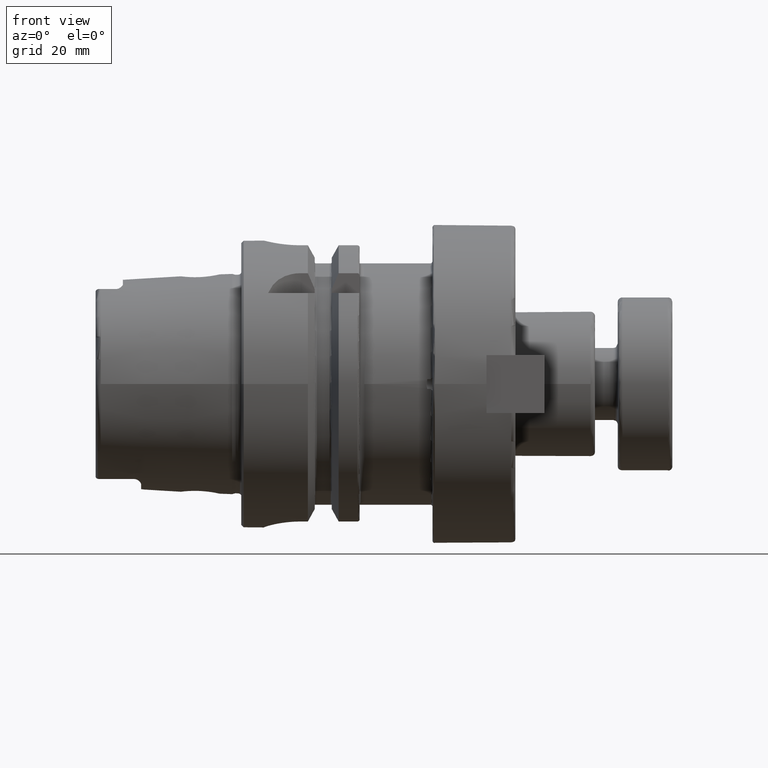
[diagram: clean part render]
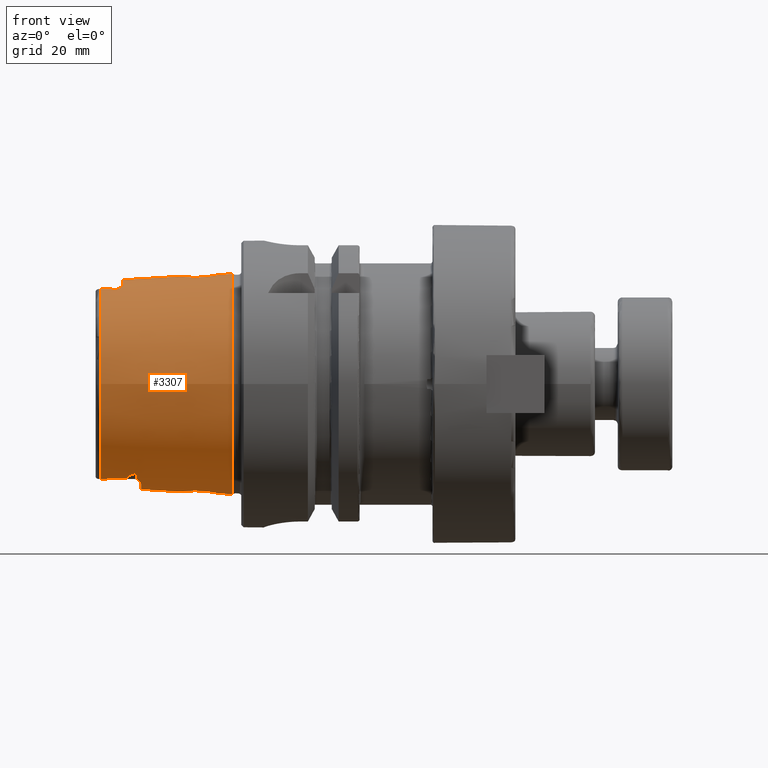
[diagram: same view with one face highlighted and labeled with its STEP entity id]
A machine part, front view. The second image highlights one B-rep face of the part: STEP entity #3307.
In plain terms, the highlighted conical surface has half-angle 2.868 deg.
Its self-contained STEP definition (entity closure, byte-faithful):
#53=(
BOUNDED_CURVE()
B_SPLINE_CURVE(2,(#5872,#5873,#5874),.UNSPECIFIED.,.F.,.F.)
B_SPLINE_CURVE_WITH_KNOTS((3,3),(0.409626932432081,0.704053423593105),
 .UNSPECIFIED.)
CURVE()
GEOMETRIC_REPRESENTATION_ITEM()
RATIONAL_B_SPLINE_CURVE((1.00336468859939,1.00336468859939,1.00162640098087))
REPRESENTATION_ITEM('')
);
#54=(
BOUNDED_CURVE()
B_SPLINE_CURVE(2,(#5939,#5940,#5941),.UNSPECIFIED.,.F.,.F.)
B_SPLINE_CURVE_WITH_KNOTS((3,3),(0.115200441271059,0.409626932432082),
 .UNSPECIFIED.)
CURVE()
GEOMETRIC_REPRESENTATION_ITEM()
RATIONAL_B_SPLINE_CURVE((1.00162640098087,1.00336468859939,1.00336468859939))
REPRESENTATION_ITEM('')
);
#132=FACE_BOUND('',#943,.T.);
#133=FACE_BOUND('',#944,.T.);
#272=LINE('',#5869,#472);
#472=VECTOR('',#4317,23.4974838444284);
#736=FACE_OUTER_BOUND('',#942,.T.);
#942=EDGE_LOOP('',(#2512,#2513,#2514,#2515,#2516,#2517,#2518,#2519,#2520,
#2521,#2522,#2523,#2524,#2525,#2526,#2527,#2528,#2529,#2530,#2531));
#943=EDGE_LOOP('',(#2532));
#944=EDGE_LOOP('',(#2533));
#1164=CIRCLE('',#3690,24.2204308617234);
#1165=CIRCLE('',#3691,22.7745368271334);
#1166=CIRCLE('',#3692,23.2184268537074);
#1167=CIRCLE('',#3693,22.7745368271334);
#1168=CIRCLE('',#3694,23.0180260521042);
#1169=CIRCLE('',#3695,22.7745368271334);
#1313=B_SPLINE_CURVE_WITH_KNOTS('',3,(#5558,#5559,#5560,#5561,#5562,#5563,
#5564,#5565,#5566,#5567,#5568,#5569,#5570,#5571,#5572,#5573,#5574,#5575),
 .UNSPECIFIED.,.F.,.F.,(4,2,2,2,2,2,2,2,4),(0.937345209538582,1.02529838322405,
1.19618144709472,1.36706451096539,1.42680307053412,1.48654163010284,1.50096970945234,
1.50818374912708,1.51539778880183),.UNSPECIFIED.);
#1316=B_SPLINE_CURVE_WITH_KNOTS('',3,(#5626,#5627,#5628,#5629,#5630,#5631,
#5632,#5633,#5634,#5635,#5636,#5637,#5638,#5639,#5640,#5641,#5642,#5643),
 .UNSPECIFIED.,.F.,.F.,(4,2,2,2,2,2,2,2,4),(1.51539778880184,1.52261182847659,
1.52982586815134,1.54425394750083,1.60399250706955,1.66373106663827,1.83461413050895,
2.00549719437962,2.0934503680651),.UNSPECIFIED.);
#1318=B_SPLINE_CURVE_WITH_KNOTS('',3,(#5681,#5682,#5683,#5684,#5685,#5686,
#5687,#5688),.UNSPECIFIED.,.F.,.F.,(4,2,2,4),(1.77153596711132,1.83492838643131,
2.00584149209106,2.09371558288111),.UNSPECIFIED.);
#1319=B_SPLINE_CURVE_WITH_KNOTS('',3,(#5705,#5706,#5707,#5708,#5709,#5710,
#5711,#5712),.UNSPECIFIED.,.F.,.F.,(4,2,2,4),(0.937604543168422,1.02547863395848,
1.19639173961822,1.25978415893822),.UNSPECIFIED.);
#1323=B_SPLINE_CURVE_WITH_KNOTS('',3,(#5844,#5845,#5846,#5847,#5848,#5849,
#5850,#5851,#5852,#5853,#5854,#5855,#5856,#5857,#5858,#5859,#5860,#5861,
#5862,#5863,#5864),.UNSPECIFIED.,.T.,.F.,(4,1,1,1,1,1,1,1,1,1,1,1,1,1,1,
1,1,1,4),(-2.26557970640445,-2.10375258451842,-1.94192546263239,-1.86101190168937,
-1.78009834074636,-1.61827121886032,-1.45644409697429,-1.37553053603127,
-1.29461697508826,-1.18673222716424,-1.07884747924022,-0.970962731316194,
-0.863077983392173,-0.755193235468151,-0.647308487544129,-0.485481365658097,
-0.323654243772065,-0.161827121886032,0.),.UNSPECIFIED.);
#1324=B_SPLINE_CURVE_WITH_KNOTS('',3,(#5876,#5877,#5878,#5879,#5880,#5881,
#5882,#5883,#5884,#5885,#5886,#5887,#5888,#5889,#5890,#5891,#5892,#5893),
 .UNSPECIFIED.,.F.,.F.,(4,2,2,2,2,2,2,2,4),(0.,0.0903555875079969,0.135533381261995,
0.180711175015994,0.191679253692351,0.19716329303053,0.202647332368709,
0.208141673454593,0.210684760739668),.UNSPECIFIED.);
#1325=B_SPLINE_CURVE_WITH_KNOTS('',3,(#5895,#5896,#5897,#5898,#5899,#5900,
#5901,#5902,#5903,#5904),.UNSPECIFIED.,.F.,.F.,(4,2,2,2,4),(0.278659319230627,
0.333918541832895,0.442805459609021,0.482035165304681,0.500954004489134),
 .UNSPECIFIED.);
#1326=B_SPLINE_CURVE_WITH_KNOTS('',3,(#5908,#5909,#5910,#5911,#5912,#5913,
#5914,#5915,#5916,#5917,#5918,#5919),.UNSPECIFIED.,.F.,.F.,(4,2,2,2,2,4),
(0.500954004487512,0.503863987446674,0.528331134036938,0.580812359186298,
0.712749669755574,0.726249722962121),.UNSPECIFIED.);
#1327=B_SPLINE_CURVE_WITH_KNOTS('',3,(#5921,#5922,#5923,#5924,#5925,#5926,
#5927,#5928,#5929,#5930,#5931,#5932,#5933,#5934,#5935,#5936,#5937,#5938),
 .UNSPECIFIED.,.F.,.F.,(4,2,2,2,2,2,2,2,4),(0.599581967500703,0.602125054785784,
0.607619395871668,0.613103435209847,0.618587474548027,0.629555553224386,
0.674733346978385,0.719911140732385,0.810266728240384),.UNSPECIFIED.);
#1328=B_SPLINE_CURVE_WITH_KNOTS('',3,(#5944,#5945,#5946,#5947,#5948,#5949,
#5950,#5951,#5952,#5953,#5954,#5955,#5956,#5957),.UNSPECIFIED.,.F.,.F.,
(4,2,2,2,2,2,4),(0.612787130113112,0.692070205831572,0.846913877833334,
0.923866042648552,0.979732337200682,1.02631946127753,1.05465853457542),
 .UNSPECIFIED.);
#1329=B_SPLINE_CURVE_WITH_KNOTS('',3,(#5960,#5961,#5962,#5963,#5964,#5965,
#5966,#5967,#5968,#5969,#5970,#5971,#5972,#5973),.UNSPECIFIED.,.F.,.F.,
(4,2,2,2,2,2,4),(0.413162960284885,0.443293122422243,0.485069563612126,
0.532728756474865,0.604908335246701,0.737193690325506,0.813919818316776),
 .UNSPECIFIED.);
#1330=B_SPLINE_CURVE_WITH_KNOTS('',3,(#5976,#5977,#5978,#5979,#5980,#5981,
#5982,#5983,#5984,#5985,#5986,#5987,#5988,#5989,#5990,#5991,#5992,#5993,
#5994,#5995,#5996),.UNSPECIFIED.,.T.,.F.,(4,1,1,1,1,1,1,1,1,1,1,1,1,1,1,
1,1,1,4),(-2.26557970640445,-2.10375258451842,-1.94192546263239,-1.78009834074636,
-1.61827121886032,-1.45644409697429,-1.37553053603127,-1.29461697508826,
-1.18673222716424,-1.07884747924022,-1.0249051052782,-0.970962731316194,
-0.755193235468151,-0.647308487544129,-0.485481365658097,-0.404567804715081,
-0.323654243772065,-0.161827121886032,0.),.UNSPECIFIED.);
#1466=VERTEX_POINT('',#5555);
#1467=VERTEX_POINT('',#5557);
#1477=VERTEX_POINT('',#5612);
#1478=VERTEX_POINT('',#5625);
#1488=VERTEX_POINT('',#5667);
#1489=VERTEX_POINT('',#5680);
#1495=VERTEX_POINT('',#5702);
#1496=VERTEX_POINT('',#5704);
#1499=VERTEX_POINT('',#5815);
#1502=VERTEX_POINT('',#5866);
#1503=VERTEX_POINT('',#5868);
#1504=VERTEX_POINT('',#5871);
#1505=VERTEX_POINT('',#5875);
#1506=VERTEX_POINT('',#5894);
#1507=VERTEX_POINT('',#5905);
#1508=VERTEX_POINT('',#5907);
#1509=VERTEX_POINT('',#5920);
#1510=VERTEX_POINT('',#5943);
#1511=VERTEX_POINT('',#5958);
#1512=VERTEX_POINT('',#5975);
#1838=EDGE_CURVE('',#1467,#1466,#1313,.T.);
#1852=EDGE_CURVE('',#1478,#1477,#1316,.T.);
#1865=EDGE_CURVE('',#1489,#1488,#1318,.T.);
#1873=EDGE_CURVE('',#1496,#1495,#1319,.T.);
#1881=EDGE_CURVE('',#1499,#1499,#1323,.T.);
#1882=EDGE_CURVE('',#1502,#1502,#1164,.T.);
#1883=EDGE_CURVE('',#1502,#1503,#272,.T.);
#1884=EDGE_CURVE('',#1503,#1467,#1165,.T.);
#1885=EDGE_CURVE('',#1466,#1504,#53,.T.);
#1886=EDGE_CURVE('',#1505,#1504,#1324,.T.);
#1887=EDGE_CURVE('',#1506,#1505,#1325,.T.);
#1888=EDGE_CURVE('',#1506,#1507,#1166,.T.);
#1889=EDGE_CURVE('',#1508,#1507,#1326,.T.);
#1890=EDGE_CURVE('',#1509,#1508,#1327,.T.);
#1891=EDGE_CURVE('',#1509,#1478,#54,.T.);
#1892=EDGE_CURVE('',#1477,#1496,#1167,.T.);
#1893=EDGE_CURVE('',#1510,#1495,#1328,.T.);
#1894=EDGE_CURVE('',#1510,#1511,#1168,.T.);
#1895=EDGE_CURVE('',#1489,#1511,#1329,.T.);
#1896=EDGE_CURVE('',#1488,#1503,#1169,.T.);
#1897=EDGE_CURVE('',#1512,#1512,#1330,.T.);
#2512=ORIENTED_EDGE('',*,*,#1882,.F.);
#2513=ORIENTED_EDGE('',*,*,#1883,.T.);
#2514=ORIENTED_EDGE('',*,*,#1884,.T.);
#2515=ORIENTED_EDGE('',*,*,#1838,.T.);
#2516=ORIENTED_EDGE('',*,*,#1885,.T.);
#2517=ORIENTED_EDGE('',*,*,#1886,.F.);
#2518=ORIENTED_EDGE('',*,*,#1887,.F.);
#2519=ORIENTED_EDGE('',*,*,#1888,.T.);
#2520=ORIENTED_EDGE('',*,*,#1889,.F.);
#2521=ORIENTED_EDGE('',*,*,#1890,.F.);
#2522=ORIENTED_EDGE('',*,*,#1891,.T.);
#2523=ORIENTED_EDGE('',*,*,#1852,.T.);
#2524=ORIENTED_EDGE('',*,*,#1892,.T.);
#2525=ORIENTED_EDGE('',*,*,#1873,.T.);
#2526=ORIENTED_EDGE('',*,*,#1893,.F.);
#2527=ORIENTED_EDGE('',*,*,#1894,.T.);
#2528=ORIENTED_EDGE('',*,*,#1895,.F.);
#2529=ORIENTED_EDGE('',*,*,#1865,.T.);
#2530=ORIENTED_EDGE('',*,*,#1896,.T.);
#2531=ORIENTED_EDGE('',*,*,#1883,.F.);
#2532=ORIENTED_EDGE('',*,*,#1897,.F.);
#2533=ORIENTED_EDGE('',*,*,#1881,.F.);
#3231=CONICAL_SURFACE('',#3689,23.4974838444284,0.0500583457465973);
#3307=ADVANCED_FACE('',(#736,#132,#133),#3231,.T.);
#3689=AXIS2_PLACEMENT_3D('',#5865,#4313,#4314);
#3690=AXIS2_PLACEMENT_3D('',#5867,#4315,#4316);
#3691=AXIS2_PLACEMENT_3D('',#5870,#4318,#4319);
#3692=AXIS2_PLACEMENT_3D('',#5906,#4320,#4321);
#3693=AXIS2_PLACEMENT_3D('',#5942,#4322,#4323);
#3694=AXIS2_PLACEMENT_3D('',#5959,#4324,#4325);
#3695=AXIS2_PLACEMENT_3D('',#5974,#4326,#4327);
#4313=DIRECTION('center_axis',(1.,0.,0.));
#4314=DIRECTION('ref_axis',(0.,1.,0.));
#4315=DIRECTION('center_axis',(1.,0.,0.));
#4316=DIRECTION('ref_axis',(0.,0.,-1.));
#4317=DIRECTION('',(-0.998747342623037,0.0500374420151821,6.1278193201414E-18));
#4318=DIRECTION('center_axis',(1.,0.,0.));
#4319=DIRECTION('ref_axis',(0.,0.,-1.));
#4320=DIRECTION('center_axis',(1.,0.,0.));
#4321=DIRECTION('ref_axis',(0.,1.,0.));
#4322=DIRECTION('center_axis',(1.,0.,0.));
#4323=DIRECTION('ref_axis',(0.,0.,-1.));
#4324=DIRECTION('center_axis',(1.,0.,0.));
#4325=DIRECTION('ref_axis',(0.,1.,0.));
#4326=DIRECTION('center_axis',(1.,0.,0.));
#4327=DIRECTION('ref_axis',(0.,0.,-1.));
#5555=CARTESIAN_POINT('',(-25.0978148584663,-10.4556386714692,-20.5570425901345));
#5557=CARTESIAN_POINT('',(-30.8600449304182,-9.1175788960984,-20.8698175067219));
#5558=CARTESIAN_POINT('Ctrl Pts',(-30.8600449304182,-9.11757889609839,-20.8698175067219));
#5559=CARTESIAN_POINT('Ctrl Pts',(-30.5458909643235,-9.15590567779842,-20.8702489912062));
#5560=CARTESIAN_POINT('Ctrl Pts',(-30.2333885582947,-9.19553638844306,-20.8699331931734));
#5561=CARTESIAN_POINT('Ctrl Pts',(-29.3200764392134,-9.31683719872071,-20.8662835753638));
#5562=CARTESIAN_POINT('Ctrl Pts',(-28.7253632733503,-9.40260250516231,-20.8605355436413));
#5563=CARTESIAN_POINT('Ctrl Pts',(-27.5600080230793,-9.59491882494623,-20.8370744460606));
#5564=CARTESIAN_POINT('Ctrl Pts',(-26.9889879780948,-9.69930871486833,-20.8204848534175));
#5565=CARTESIAN_POINT('Ctrl Pts',(-26.243078447761,-9.87995363103469,-20.7763753921414));
#5566=CARTESIAN_POINT('Ctrl Pts',(-26.0321916389,-9.93536599911181,-20.7617058242075));
#5567=CARTESIAN_POINT('Ctrl Pts',(-25.6226314158803,-10.0671936374524,-20.7209199758996));
#5568=CARTESIAN_POINT('Ctrl Pts',(-25.4220827984544,-10.138547720478,-20.6974983203461));
#5569=CARTESIAN_POINT('Ctrl Pts',(-25.2208246412483,-10.2713306216733,-20.6428847988051));
#5570=CARTESIAN_POINT('Ctrl Pts',(-25.1803732229877,-10.3024924958121,-20.6296329719333));
#5571=CARTESIAN_POINT('Ctrl Pts',(-25.1342239230183,-10.3555186194877,-20.6056268137561));
#5572=CARTESIAN_POINT('Ctrl Pts',(-25.1212840412597,-10.3742534446523,-20.5969290505833));
#5573=CARTESIAN_POINT('Ctrl Pts',(-25.10307563401,-10.4135952575897,-20.5780886428205));
#5574=CARTESIAN_POINT('Ctrl Pts',(-25.0978148584663,-10.434204936409,-20.5679441285336));
#5575=CARTESIAN_POINT('Ctrl Pts',(-25.0978148584663,-10.4556386714692,-20.5570425901345));
#5612=CARTESIAN_POINT('',(-30.8600449304182,9.1175788960984,-20.8698175067219));
#5625=CARTESIAN_POINT('',(-25.0978148584663,10.4556386714692,-20.5570425901345));
#5626=CARTESIAN_POINT('Ctrl Pts',(-25.0978148584663,10.4556386714692,-20.5570425901345));
#5627=CARTESIAN_POINT('Ctrl Pts',(-25.0978148584663,10.434204936409,-20.5679441285336));
#5628=CARTESIAN_POINT('Ctrl Pts',(-25.1030756340098,10.4135952575897,-20.5780886428205));
#5629=CARTESIAN_POINT('Ctrl Pts',(-25.1212840412595,10.3742534446523,-20.5969290505833));
#5630=CARTESIAN_POINT('Ctrl Pts',(-25.1342239230183,10.3555186194877,-20.605626813756));
#5631=CARTESIAN_POINT('Ctrl Pts',(-25.1803732229877,10.3024924958122,-20.6296329719333));
#5632=CARTESIAN_POINT('Ctrl Pts',(-25.2208246412482,10.2713306216733,-20.6428847988051));
#5633=CARTESIAN_POINT('Ctrl Pts',(-25.4220827984543,10.138547720478,-20.6974983203461));
#5634=CARTESIAN_POINT('Ctrl Pts',(-25.6226314158802,10.0671936374525,-20.7209199758995));
#5635=CARTESIAN_POINT('Ctrl Pts',(-26.0321916388999,9.93536599911188,-20.7617058242075));
#5636=CARTESIAN_POINT('Ctrl Pts',(-26.2430784477608,9.8799536310347,-20.7763753921414));
#5637=CARTESIAN_POINT('Ctrl Pts',(-26.9889879780946,9.69930871486834,-20.8204848534175));
#5638=CARTESIAN_POINT('Ctrl Pts',(-27.5600080230791,9.59491882494626,-20.8370744460606));
#5639=CARTESIAN_POINT('Ctrl Pts',(-28.7253632733501,9.40260250516234,-20.8605355436413));
#5640=CARTESIAN_POINT('Ctrl Pts',(-29.3200764392133,9.31683719872073,-20.8662835753638));
#5641=CARTESIAN_POINT('Ctrl Pts',(-30.2333885582946,9.19553638844306,-20.8699331931734));
#5642=CARTESIAN_POINT('Ctrl Pts',(-30.5458909643235,9.15590567779843,-20.8702489912062));
#5643=CARTESIAN_POINT('Ctrl Pts',(-30.8600449304182,9.11757889609839,-20.8698175067219));
#5667=CARTESIAN_POINT('',(-30.8600449304182,-9.1175788960984,20.8698175067219));
#5680=CARTESIAN_POINT('',(-27.5000000000755,-9.61067758640857,20.8329168403914));
#5681=CARTESIAN_POINT('Ctrl Pts',(-27.500000000078,-9.61067758642201,20.8329168403892));
#5682=CARTESIAN_POINT('Ctrl Pts',(-27.7125737548958,-9.57148784129481,20.8392673030342));
#5683=CARTESIAN_POINT('Ctrl Pts',(-27.9270578144772,-9.53434241390281,20.8444654011212));
#5684=CARTESIAN_POINT('Ctrl Pts',(-28.7259960474271,-9.40250589525003,20.8605443506117));
#5685=CARTESIAN_POINT('Ctrl Pts',(-29.3208153495341,-9.3167323629879,20.8662898636256));
#5686=CARTESIAN_POINT('Ctrl Pts',(-30.2339565561897,-9.19546438357122,20.8699337533607));
#5687=CARTESIAN_POINT('Ctrl Pts',(-30.5461763429502,-9.15587086160794,20.8702485992441));
#5688=CARTESIAN_POINT('Ctrl Pts',(-30.8600449304182,-9.11757889609839,20.8698175067219));
#5702=CARTESIAN_POINT('',(-27.5000000000755,9.61067758640857,20.8329168403914));
#5704=CARTESIAN_POINT('',(-30.8600449304182,9.1175788960984,20.8698175067219));
#5705=CARTESIAN_POINT('Ctrl Pts',(-30.8600449304182,9.11757889609839,20.8698175067219));
#5706=CARTESIAN_POINT('Ctrl Pts',(-30.5461763429502,9.15587086160794,20.8702485992441));
#5707=CARTESIAN_POINT('Ctrl Pts',(-30.2339565561898,9.1954643835712,20.8699337533607));
#5708=CARTESIAN_POINT('Ctrl Pts',(-29.3208153495341,9.31673236298789,20.8662898636256));
#5709=CARTESIAN_POINT('Ctrl Pts',(-28.7259960474271,9.40250589525004,20.8605443506117));
#5710=CARTESIAN_POINT('Ctrl Pts',(-27.9270578144772,9.53434241390281,20.8444654011213));
#5711=CARTESIAN_POINT('Ctrl Pts',(-27.7125737548958,9.57148784129481,20.8392673030342));
#5712=CARTESIAN_POINT('Ctrl Pts',(-27.500000000078,9.61067758642201,20.8329168403892));
#5815=CARTESIAN_POINT('',(-9.02925407423461,4.24282684078987,-23.4881339907642));
#5844=CARTESIAN_POINT('Ctrl Pts',(-9.02925407423461,4.24282684078987,-23.4881339907642));
#5845=CARTESIAN_POINT('Ctrl Pts',(-8.41794937729802,4.24763962021184,-23.5183867686952));
#5846=CARTESIAN_POINT('Ctrl Pts',(-7.09719062335626,3.96214027152736,-23.6400391343347));
#5847=CARTESIAN_POINT('Ctrl Pts',(-5.85872384144614,2.97350456469995,-23.8514262488192));
#5848=CARTESIAN_POINT('Ctrl Pts',(-5.16063731756733,1.91003066646729,-23.9915936511341));
#5849=CARTESIAN_POINT('Ctrl Pts',(-4.71967908413408,0.667233683255142,-24.0892210412975));
#5850=CARTESIAN_POINT('Ctrl Pts',(-4.69487671176925,-0.887140287368458,
-24.0946920123011));
#5851=CARTESIAN_POINT('Ctrl Pts',(-5.41575081787389,-2.43754371827964,-23.9347651451498));
#5852=CARTESIAN_POINT('Ctrl Pts',(-6.27200380070453,-3.29839456985501,-23.7808774616528));
#5853=CARTESIAN_POINT('Ctrl Pts',(-7.16157899956841,-3.8911177348338,-23.6460473005722));
#5854=CARTESIAN_POINT('Ctrl Pts',(-8.32145673061719,-4.25090987526345,-23.5228217546797));
#5855=CARTESIAN_POINT('Ctrl Pts',(-9.55257943298201,-4.26858049401254,-23.456823819944));
#5856=CARTESIAN_POINT('Ctrl Pts',(-10.8313666496774,-3.90479981259957,-23.4573341216261));
#5857=CARTESIAN_POINT('Ctrl Pts',(-11.8961422246607,-3.1841113544275,-23.5146565929276));
#5858=CARTESIAN_POINT('Ctrl Pts',(-12.7003698798572,-2.21954630167764,-23.5891273633448));
#5859=CARTESIAN_POINT('Ctrl Pts',(-13.2855020445789,-0.774775065590821,
-23.6608303251767));
#5860=CARTESIAN_POINT('Ctrl Pts',(-13.2993151465013,0.893979362185892,-23.6627026291545));
#5861=CARTESIAN_POINT('Ctrl Pts',(-12.4532300975689,2.72994365265342,-23.5583564408809));
#5862=CARTESIAN_POINT('Ctrl Pts',(-10.9641321027099,3.91707089294868,-23.4490088113463));
#5863=CARTESIAN_POINT('Ctrl Pts',(-9.64055877117117,4.23801406136791,-23.4578812128331));
#5864=CARTESIAN_POINT('Ctrl Pts',(-9.02925407423461,4.24282684078988,-23.4881339907642));
#5865=CARTESIAN_POINT('Origin',(-16.4300224652091,0.,0.));
#5866=CARTESIAN_POINT('',(-2.,-24.2204308617234,-2.96614731287794E-15));
#5867=CARTESIAN_POINT('Origin',(-2.,0.,0.));
#5868=CARTESIAN_POINT('',(-30.8600449304182,-22.7745368271334,-2.78907636274124E-15));
#5869=CARTESIAN_POINT('',(-16.4300224652091,-23.4974838444284,-2.87761183780959E-15));
#5870=CARTESIAN_POINT('Origin',(-30.8600449304182,0.,0.));
#5871=CARTESIAN_POINT('',(-23.5,-12.1698923613067,-19.6851459107563));
#5872=CARTESIAN_POINT('Ctrl Pts',(-25.0978148584663,-10.4556386714692,-20.5570425901345));
#5873=CARTESIAN_POINT('Ctrl Pts',(-25.0978148584663,-11.3112805797553,-20.1218495128239));
#5874=CARTESIAN_POINT('Ctrl Pts',(-23.5,-12.1698923613067,-19.6851459107563));
#5875=CARTESIAN_POINT('',(-22.9409864229987,-10.5046262057925,-20.6533579718259));
#5876=CARTESIAN_POINT('Ctrl Pts',(-22.9409864229987,-10.5046262057925,-20.6533579718259));
#5877=CARTESIAN_POINT('Ctrl Pts',(-22.9409864229987,-10.7730829666602,-20.516816595398));
#5878=CARTESIAN_POINT('Ctrl Pts',(-22.9574206817668,-11.0623666606509,-20.3616089931375));
#5879=CARTESIAN_POINT('Ctrl Pts',(-23.0214299513488,-11.4761009466796,-20.1257517714531));
#5880=CARTESIAN_POINT('Ctrl Pts',(-23.0491283200772,-11.6099871059181,-20.0471312410654));
#5881=CARTESIAN_POINT('Ctrl Pts',(-23.1253497318037,-11.8635092488451,-19.8937049027563));
#5882=CARTESIAN_POINT('Ctrl Pts',(-23.1681553584466,-11.9845149642791,-19.8183788237048));
#5883=CARTESIAN_POINT('Ctrl Pts',(-23.2720205567489,-12.1145084587468,-19.7327054731899));
#5884=CARTESIAN_POINT('Ctrl Pts',(-23.2970638659452,-12.1405120406692,-19.7152346163683));
#5885=CARTESIAN_POINT('Ctrl Pts',(-23.340824213029,-12.1694983830269,-19.6947680043585));
#5886=CARTESIAN_POINT('Ctrl Pts',(-23.3564336502031,-12.1775072041959,-19.6888951705931));
#5887=CARTESIAN_POINT('Ctrl Pts',(-23.3894992563298,-12.1884299822762,-19.6801867490419));
#5888=CARTESIAN_POINT('Ctrl Pts',(-23.4069516148396,-12.191352087042,-19.6773469156348));
#5889=CARTESIAN_POINT('Ctrl Pts',(-23.4435003757557,-12.1903876993059,-19.675790353909));
#5890=CARTESIAN_POINT('Ctrl Pts',(-23.4609883159786,-12.1865341044229,-19.6771480362853));
#5891=CARTESIAN_POINT('Ctrl Pts',(-23.4852443648865,-12.1772664781571,-19.6814547071094));
#5892=CARTESIAN_POINT('Ctrl Pts',(-23.4927247382132,-12.1738018414638,-19.6831574869965));
#5893=CARTESIAN_POINT('Ctrl Pts',(-23.5,-12.1698923613067,-19.6851459107563));
#5894=CARTESIAN_POINT('',(-22.,-7.4031250016059,-22.0065691504051));
#5895=CARTESIAN_POINT('Ctrl Pts',(-22.,-7.40312500160641,-22.0065691504049));
#5896=CARTESIAN_POINT('Ctrl Pts',(-22.,-7.64154328791244,-21.9263639914758));
#5897=CARTESIAN_POINT('Ctrl Pts',(-22.0282316966018,-7.93106690411137,-21.8234540350138));
#5898=CARTESIAN_POINT('Ctrl Pts',(-22.2899989017396,-8.94727995671646,-21.421774019244));
#5899=CARTESIAN_POINT('Ctrl Pts',(-22.60775210997,-9.49253651928731,-21.1610368486918));
#5900=CARTESIAN_POINT('Ctrl Pts',(-22.8524785496019,-10.0580168739411,-20.8800894739587));
#5901=CARTESIAN_POINT('Ctrl Pts',(-22.8997008986804,-10.1907353571143,-20.8128334005565));
#5902=CARTESIAN_POINT('Ctrl Pts',(-22.9350020039233,-10.381785274935,-20.7158310407179));
#5903=CARTESIAN_POINT('Ctrl Pts',(-22.9409864229987,-10.4428555441716,-20.6847755123391));
#5904=CARTESIAN_POINT('Ctrl Pts',(-22.9409864229987,-10.5046262057925,-20.6533579718259));
#5905=CARTESIAN_POINT('',(-22.,7.4031250016059,-22.0065691504051));
#5906=CARTESIAN_POINT('Origin',(-22.,0.,0.));
#5907=CARTESIAN_POINT('',(-22.9409864229987,10.5046262057925,-20.6533579718259));
#5908=CARTESIAN_POINT('Ctrl Pts',(-22.9409864229987,10.5046262057925,-20.6533579718259));
#5909=CARTESIAN_POINT('Ctrl Pts',(-22.9409864229987,10.4951250111927,-20.6581904304467));
#5910=CARTESIAN_POINT('Ctrl Pts',(-22.9408450644905,10.4856070684351,-20.6630311043921));
#5911=CARTESIAN_POINT('Ctrl Pts',(-22.9381719760295,10.3958439048842,-20.7086800932502));
#5912=CARTESIAN_POINT('Ctrl Pts',(-22.9258072553349,10.3185989460598,-20.747952822378));
#5913=CARTESIAN_POINT('Ctrl Pts',(-22.8649803787077,10.0769327863764,-20.8704196245159));
#5914=CARTESIAN_POINT('Ctrl Pts',(-22.7887679321626,9.90306802919887,-20.9581178536208));
#5915=CARTESIAN_POINT('Ctrl Pts',(-22.4484945404157,9.18505116717879,-21.3075925571443));
#5916=CARTESIAN_POINT('Ctrl Pts',(-22.0746753976002,8.47121172659652,-21.631485700585));
#5917=CARTESIAN_POINT('Ctrl Pts',(-22.0031617045067,7.56447021316985,-21.9516456669287));
#5918=CARTESIAN_POINT('Ctrl Pts',(-22.,7.48262387019778,-21.9798253150689));
#5919=CARTESIAN_POINT('Ctrl Pts',(-22.,7.40312500160694,-22.0065691504047));
#5920=CARTESIAN_POINT('',(-23.5,12.1698923613067,-19.6851459107563));
#5921=CARTESIAN_POINT('Ctrl Pts',(-23.5,12.1698923613067,-19.6851459107563));
#5922=CARTESIAN_POINT('Ctrl Pts',(-23.4927247382132,12.1738018414639,-19.6831574869965));
#5923=CARTESIAN_POINT('Ctrl Pts',(-23.4852443648865,12.1772664781571,-19.6814547071094));
#5924=CARTESIAN_POINT('Ctrl Pts',(-23.4609883159786,12.1865341044229,-19.6771480362853));
#5925=CARTESIAN_POINT('Ctrl Pts',(-23.4435003757557,12.190387699306,-19.6757903539089));
#5926=CARTESIAN_POINT('Ctrl Pts',(-23.4069516148396,12.1913520870421,-19.6773469156348));
#5927=CARTESIAN_POINT('Ctrl Pts',(-23.3894992563298,12.1884299822762,-19.6801867490419));
#5928=CARTESIAN_POINT('Ctrl Pts',(-23.3564336502031,12.1775072041959,-19.688895170593));
#5929=CARTESIAN_POINT('Ctrl Pts',(-23.340824213029,12.169498383027,-19.6947680043585));
#5930=CARTESIAN_POINT('Ctrl Pts',(-23.2970638659452,12.1405120406693,-19.7152346163683));
#5931=CARTESIAN_POINT('Ctrl Pts',(-23.2720205567489,12.1145084587468,-19.7327054731899));
#5932=CARTESIAN_POINT('Ctrl Pts',(-23.1681553584466,11.9845149642791,-19.8183788237047));
#5933=CARTESIAN_POINT('Ctrl Pts',(-23.1253497318037,11.8635092488451,-19.8937049027563));
#5934=CARTESIAN_POINT('Ctrl Pts',(-23.0491283200772,11.6099871059182,-20.0471312410654));
#5935=CARTESIAN_POINT('Ctrl Pts',(-23.0214299513488,11.4761009466796,-20.1257517714531));
#5936=CARTESIAN_POINT('Ctrl Pts',(-22.9574206817668,11.0623666606509,-20.3616089931375));
#5937=CARTESIAN_POINT('Ctrl Pts',(-22.9409864229987,10.7730829666602,-20.516816595398));
#5938=CARTESIAN_POINT('Ctrl Pts',(-22.9409864229987,10.5046262057925,-20.6533579718259));
#5939=CARTESIAN_POINT('Ctrl Pts',(-23.5,12.1698923613067,-19.6851459107563));
#5940=CARTESIAN_POINT('Ctrl Pts',(-25.0978148584663,11.3112805797553,-20.1218495128239));
#5941=CARTESIAN_POINT('Ctrl Pts',(-25.0978148584662,10.4556386714692,-20.5570425901345));
#5942=CARTESIAN_POINT('Origin',(-30.8600449304182,0.,0.));
#5943=CARTESIAN_POINT('',(-26.,7.14127219004964,21.8822246319466));
#5944=CARTESIAN_POINT('Ctrl Pts',(-26.,7.14127219004961,21.8822246319466));
#5945=CARTESIAN_POINT('Ctrl Pts',(-26.,7.38735946023367,21.801913959314));
#5946=CARTESIAN_POINT('Ctrl Pts',(-26.033972788753,7.6348229641926,21.7146832850108));
#5947=CARTESIAN_POINT('Ctrl Pts',(-26.2194423861809,8.34889404999878,21.4446815988104));
#5948=CARTESIAN_POINT('Ctrl Pts',(-26.4428793547877,8.75952114583647,21.2645357982171));
#5949=CARTESIAN_POINT('Ctrl Pts',(-26.7590254549201,9.19092879202929,21.0625769757811));
#5950=CARTESIAN_POINT('Ctrl Pts',(-26.8729708291724,9.32104212441507,20.9987774802419));
#5951=CARTESIAN_POINT('Ctrl Pts',(-27.0716948778125,9.49280512119963,20.9106159819251));
#5952=CARTESIAN_POINT('Ctrl Pts',(-27.1448065537381,9.53932652154806,20.8852782118318));
#5953=CARTESIAN_POINT('Ctrl Pts',(-27.2637975599135,9.59417850538162,20.853566879664));
#5954=CARTESIAN_POINT('Ctrl Pts',(-27.322222387454,9.61219549867679,20.8420263003947));
#5955=CARTESIAN_POINT('Ctrl Pts',(-27.4236635149584,9.61988157707407,20.8328813745288));
#5956=CARTESIAN_POINT('Ctrl Pts',(-27.4617925463603,9.61772144927266,20.8317754247499));
#5957=CARTESIAN_POINT('Ctrl Pts',(-27.5000000000779,9.61067758642203,20.8329168403892));
#5958=CARTESIAN_POINT('',(-26.,-7.14127219004964,21.8822246319466));
#5959=CARTESIAN_POINT('Origin',(-26.,0.,0.));
#5960=CARTESIAN_POINT('Ctrl Pts',(-27.500000000078,-9.610677586422,20.8329168403892));
#5961=CARTESIAN_POINT('Ctrl Pts',(-27.4634308025005,-9.61741942308555,20.8318243662782));
#5962=CARTESIAN_POINT('Ctrl Pts',(-27.4260889661871,-9.61985292316152,20.8327607188551));
#5963=CARTESIAN_POINT('Ctrl Pts',(-27.3343377981765,-9.61339298685805,20.8408051456548));
#5964=CARTESIAN_POINT('Ctrl Pts',(-27.2828394544385,-9.59996378018902,20.8498476845684));
#5965=CARTESIAN_POINT('Ctrl Pts',(-27.1765640574038,-9.55615724159004,20.8758218933212));
#5966=CARTESIAN_POINT('Ctrl Pts',(-27.111584300389,-9.51976030908576,20.8961199655304));
#5967=CARTESIAN_POINT('Ctrl Pts',(-26.9153060284285,-9.36478934458731,20.9769473005223));
#5968=CARTESIAN_POINT('Ctrl Pts',(-26.7955937204007,-9.23492374831594,21.0413520243865));
#5969=CARTESIAN_POINT('Ctrl Pts',(-26.4809422997755,-8.82026009617074,21.2370375105362));
#5970=CARTESIAN_POINT('Ctrl Pts',(-26.2539798154924,-8.42841535117176,21.4117405279022));
#5971=CARTESIAN_POINT('Ctrl Pts',(-26.0395031937781,-7.68065048502185,21.6986739773255));
#5972=CARTESIAN_POINT('Ctrl Pts',(-26.,-7.40668123592282,21.7956082905937));
#5973=CARTESIAN_POINT('Ctrl Pts',(-26.,-7.14127219004964,21.8822246319466));
#5974=CARTESIAN_POINT('Origin',(-30.8600449304182,0.,0.));
#5975=CARTESIAN_POINT('',(-9.0292540742346,4.24282684078987,23.4881339907642));
#5976=CARTESIAN_POINT('Ctrl Pts',(-9.0292540742346,4.24282684078987,23.4881339907642));
#5977=CARTESIAN_POINT('Ctrl Pts',(-9.64055877117117,4.23801406136791,23.4578812128331));
#5978=CARTESIAN_POINT('Ctrl Pts',(-10.9638730702336,3.91798236438986,23.4489970857899));
#5979=CARTESIAN_POINT('Ctrl Pts',(-12.4525958595704,2.72863690378587,23.5583136537412));
#5980=CARTESIAN_POINT('Ctrl Pts',(-13.2979904921632,0.897590812051158,23.6626376623402));
#5981=CARTESIAN_POINT('Ctrl Pts',(-13.2815658701657,-0.98999302529681,23.6604426532769));
#5982=CARTESIAN_POINT('Ctrl Pts',(-12.5283174417603,-2.51201387505666,23.5683654759453));
#5983=CARTESIAN_POINT('Ctrl Pts',(-11.6444040622836,-3.36174194412279,23.50003047831));
#5984=CARTESIAN_POINT('Ctrl Pts',(-10.7212741834396,-3.93934579023148,23.4568699868312));
#5985=CARTESIAN_POINT('Ctrl Pts',(-9.5509992773888,-4.26722573729756,23.4569375771407));
#5986=CARTESIAN_POINT('Ctrl Pts',(-8.52867241778628,-4.25003876713782,23.5122547979276));
#5987=CARTESIAN_POINT('Ctrl Pts',(-7.68780586799832,-4.05338928451488,23.5899164151454));
#5988=CARTESIAN_POINT('Ctrl Pts',(-6.48553931138608,-3.55436322843895,23.7337139580667));
#5989=CARTESIAN_POINT('Ctrl Pts',(-5.4130820429913,-2.55345835746536,23.93595268899));
#5990=CARTESIAN_POINT('Ctrl Pts',(-4.69884914086794,-0.680968659887892,
24.0937023327386));
#5991=CARTESIAN_POINT('Ctrl Pts',(-4.71937382006398,0.664900361610849,24.08935727819));
#5992=CARTESIAN_POINT('Ctrl Pts',(-5.16062521092841,1.90899044718831,23.9916071295055));
#5993=CARTESIAN_POINT('Ctrl Pts',(-5.8586063866709,2.97237256239872,23.8514805565406));
#5994=CARTESIAN_POINT('Ctrl Pts',(-7.09720951544069,3.96193589367342,23.6400338901471));
#5995=CARTESIAN_POINT('Ctrl Pts',(-8.41794937729801,4.24763962021184,23.5183867686952));
#5996=CARTESIAN_POINT('Ctrl Pts',(-9.0292540742346,4.24282684078988,23.4881339907642));